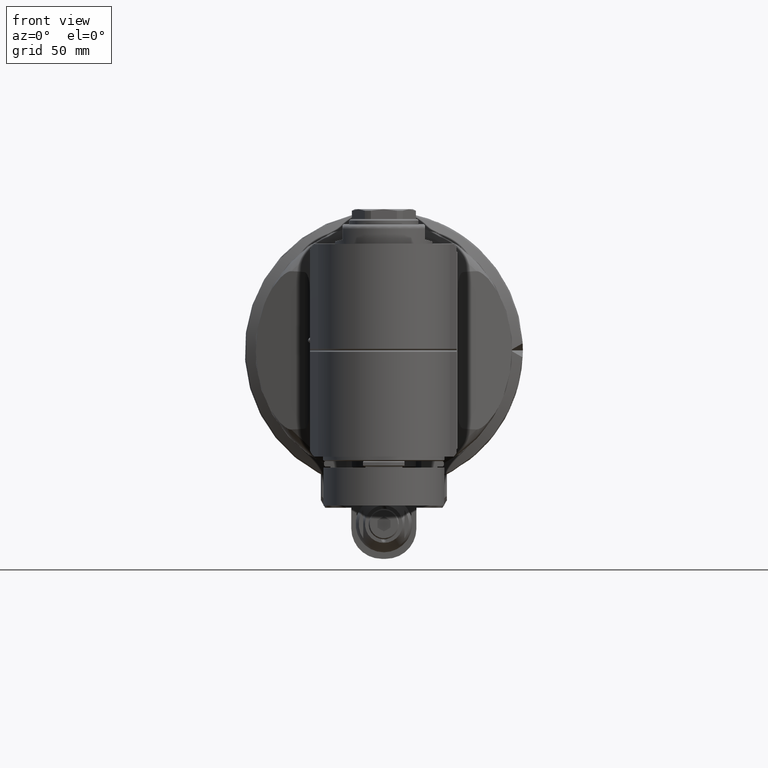
[diagram: clean part render]
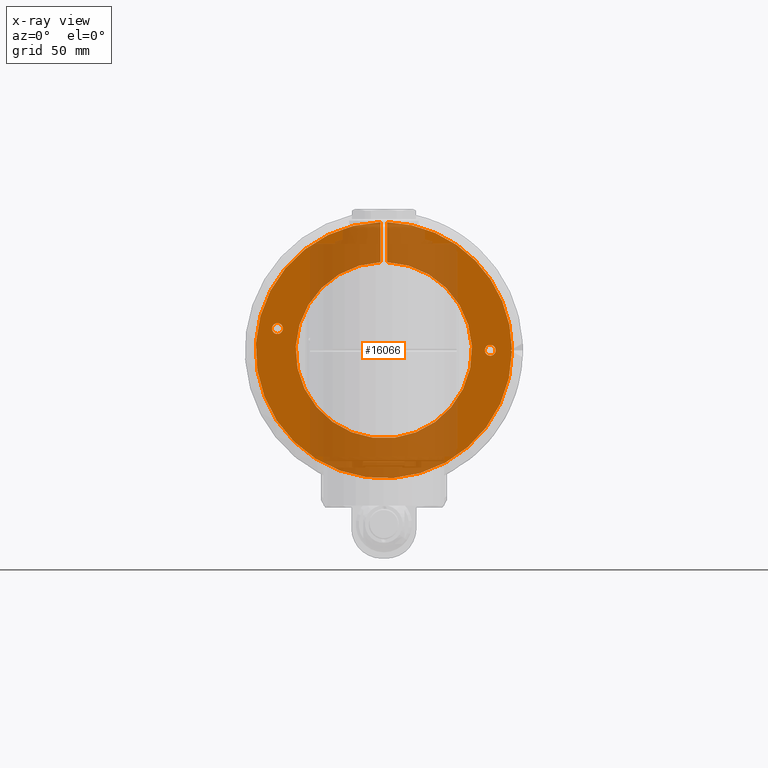
[diagram: x-ray — body ghosted, one internal face saturated and labeled with its STEP entity id]
A machine part, front view, then the same camera in x-ray: the body is ghosted and one INTERNAL B-rep face — a face not visible from any outside direction — is saturated and labeled: STEP entity #16066.
In plain terms, the highlighted planar face has unit normal (0, -1, 0).
Its self-contained STEP definition (entity closure, byte-faithful):
#943=LINE('',#26335,#2121);
#944=LINE('',#26376,#2122);
#946=LINE('',#26392,#2124);
#947=LINE('',#26419,#2125);
#2121=VECTOR('',#19631,18.43131315492);
#2122=VECTOR('',#19642,10.);
#2124=VECTOR('',#19646,10.);
#2125=VECTOR('',#19657,18.43131315492);
#3355=FACE_BOUND('',#5002,.T.);
#3356=FACE_BOUND('',#5003,.T.);
#3554=PLANE('',#17284);
#4052=FACE_OUTER_BOUND('',#5001,.T.);
#5001=EDGE_LOOP('',(#11877,#11878,#11879,#11880,#11881,#11882,#11883));
#5002=EDGE_LOOP('',(#11884));
#5003=EDGE_LOOP('',(#11885));
#6048=CIRCLE('',#17241,59.);
#6065=CIRCLE('',#17283,40.57735026919);
#6066=CIRCLE('',#17285,59.);
#6067=CIRCLE('',#17286,2.5);
#6068=CIRCLE('',#17287,2.5);
#7009=VERTEX_POINT('',#26332);
#7010=VERTEX_POINT('',#26334);
#7015=VERTEX_POINT('',#26371);
#7016=VERTEX_POINT('',#26375);
#7017=VERTEX_POINT('',#26379);
#7019=VERTEX_POINT('',#26394);
#7021=VERTEX_POINT('',#26418);
#7045=VERTEX_POINT('',#26622);
#7046=VERTEX_POINT('',#26624);
#8865=EDGE_CURVE('',#7010,#7009,#943,.T.);
#8873=EDGE_CURVE('',#7016,#7015,#944,.T.);
#8877=EDGE_CURVE('',#7017,#7016,#946,.T.);
#8878=EDGE_CURVE('',#7019,#7017,#6048,.T.);
#8882=EDGE_CURVE('',#7021,#7019,#947,.T.);
#8923=EDGE_CURVE('',#7009,#7021,#6065,.T.);
#8924=EDGE_CURVE('',#7015,#7010,#6066,.T.);
#8925=EDGE_CURVE('',#7045,#7045,#6067,.T.);
#8926=EDGE_CURVE('',#7046,#7046,#6068,.T.);
#11877=ORIENTED_EDGE('',*,*,#8924,.T.);
#11878=ORIENTED_EDGE('',*,*,#8865,.T.);
#11879=ORIENTED_EDGE('',*,*,#8923,.T.);
#11880=ORIENTED_EDGE('',*,*,#8882,.T.);
#11881=ORIENTED_EDGE('',*,*,#8878,.T.);
#11882=ORIENTED_EDGE('',*,*,#8877,.T.);
#11883=ORIENTED_EDGE('',*,*,#8873,.T.);
#11884=ORIENTED_EDGE('',*,*,#8925,.T.);
#11885=ORIENTED_EDGE('',*,*,#8926,.T.);
#16066=ADVANCED_FACE('',(#4052,#3355,#3356),#3554,.T.);
#17241=AXIS2_PLACEMENT_3D('',#26395,#19649,#19650);
#17283=AXIS2_PLACEMENT_3D('',#26619,#19745,#19746);
#17284=AXIS2_PLACEMENT_3D('',#26620,#19747,#19748);
#17285=AXIS2_PLACEMENT_3D('',#26621,#19749,#19750);
#17286=AXIS2_PLACEMENT_3D('',#26623,#19751,#19752);
#17287=AXIS2_PLACEMENT_3D('',#26625,#19753,#19754);
#19631=DIRECTION('',(0.,0.,-1.));
#19642=DIRECTION('',(0.75592894601843,0.,0.654653670708006));
#19646=DIRECTION('',(-0.75592894601843,0.,0.654653670708006));
#19649=DIRECTION('center_axis',(0.,-1.,0.));
#19650=DIRECTION('ref_axis',(0.,0.,-1.));
#19657=DIRECTION('',(0.,0.,1.));
#19745=DIRECTION('center_axis',(0.,1.,0.));
#19746=DIRECTION('ref_axis',(0.,0.,-1.));
#19747=DIRECTION('center_axis',(0.,-1.,0.));
#19748=DIRECTION('ref_axis',(0.,0.,1.));
#19749=DIRECTION('center_axis',(0.,-1.,0.));
#19750=DIRECTION('ref_axis',(0.999973237557454,0.,0.00731602138204067));
#19751=DIRECTION('center_axis',(0.,1.,0.));
#19752=DIRECTION('ref_axis',(-1.,0.,0.));
#19753=DIRECTION('center_axis',(0.,1.,0.));
#19754=DIRECTION('ref_axis',(-1.,0.,0.));
#26332=CARTESIAN_POINT('',(1.499999846154,1.894780628694E-14,40.54961597019));
#26334=CARTESIAN_POINT('',(1.499999846154,0.,58.98092912511));
#26335=CARTESIAN_POINT('',(1.499999846154,0.,58.98092912511));
#26371=CARTESIAN_POINT('',(58.9984211035747,2.48269226475992E-8,0.431645372949116));
#26375=CARTESIAN_POINT('',(58.5,0.,-4.853054148696E-14));
#26376=CARTESIAN_POINT('',(63.8447075439727,0.,4.62865250887851));
#26379=CARTESIAN_POINT('',(58.9984211035661,2.48245060114878E-8,-0.431645372941069));
#26392=CARTESIAN_POINT('',(39.8692703756239,0.,16.134685145748));
#26394=CARTESIAN_POINT('',(-1.499999846154,0.,58.98092912511));
#26395=CARTESIAN_POINT('Origin',(0.,-2.13162820728E-14,0.));
#26418=CARTESIAN_POINT('',(-1.499999846154,7.105427357601E-14,40.54961597019));
#26419=CARTESIAN_POINT('',(-1.499999846154,1.894780628694E-14,40.54961597019));
#26619=CARTESIAN_POINT('Origin',(0.,7.105427357601E-14,0.));
#26620=CARTESIAN_POINT('Origin',(0.,0.,60.46860314096));
#26621=CARTESIAN_POINT('Origin',(0.,-2.13162820728E-14,0.));
#26622=CARTESIAN_POINT('',(51.5,0.,0.));
#26623=CARTESIAN_POINT('Origin',(49.,0.,0.));
#26624=CARTESIAN_POINT('',(-46.5,0.,10.));
#26625=CARTESIAN_POINT('Origin',(-49.,0.,10.));